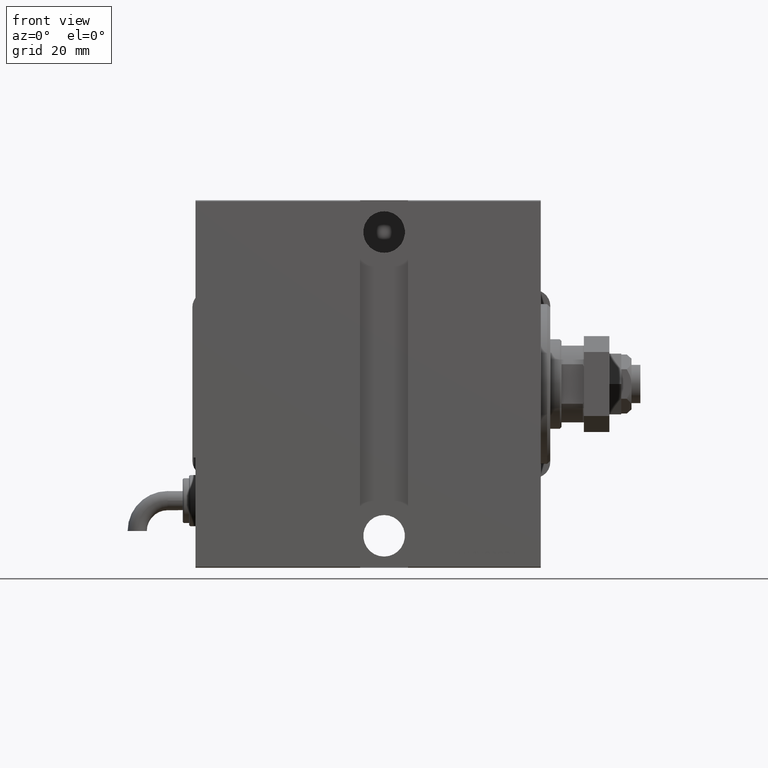
[diagram: clean part render]
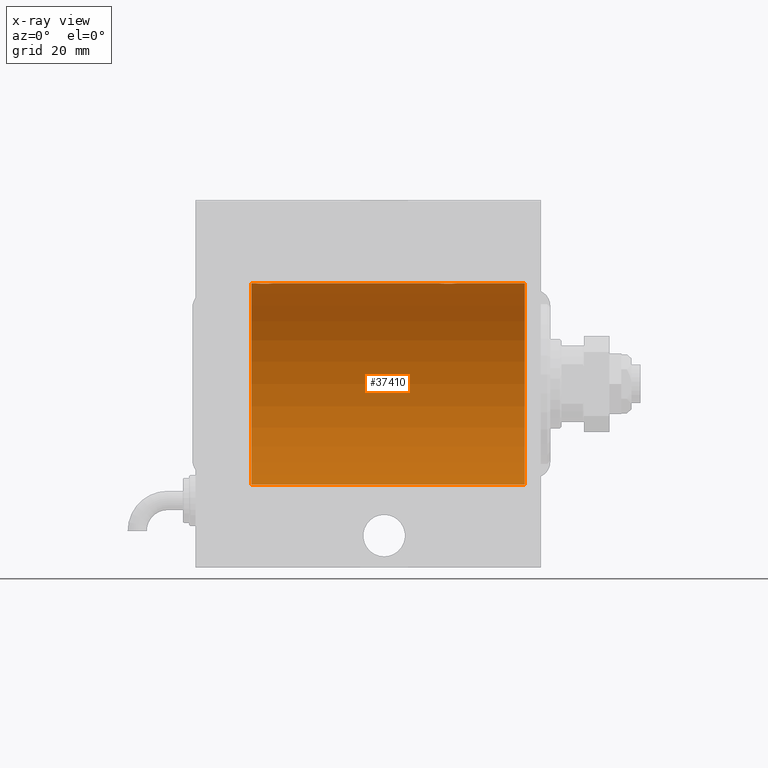
[diagram: x-ray — body ghosted, one internal face saturated and labeled with its STEP entity id]
A machine part, front view, then the same camera in x-ray: the body is ghosted and one INTERNAL B-rep face — a face not visible from any outside direction — is saturated and labeled: STEP entity #37410.
In plain terms, the highlighted cylindrical surface (partial cylindrical patch) has radius 31.5 mm, axis along (1, 0, -0).
Its self-contained STEP definition (entity closure, byte-faithful):
#1314 = CARTESIAN_POINT ( 'NONE',  ( 29.96515729810639783, -2.847307171789040581, 31.37114183851420890 ) ) ;
#1936 = CARTESIAN_POINT ( 'NONE',  ( 26.00000000000000355, -2.117263226567934635E-23, 31.50000000000000000 ) ) ;
#2154 = VERTEX_POINT ( 'NONE', #50291 ) ;
#3306 = DIRECTION ( 'NONE',  ( 0.000000000000000000, 0.000000000000000000, 1.000000000000000000 ) ) ;
#3326 = CARTESIAN_POINT ( 'NONE',  ( 87.82865414687509542, -2.696917666262918623, 31.38442820068732075 ) ) ;
#3618 = CARTESIAN_POINT ( 'NONE',  ( 83.49999999999998579, -2.116947682205846230E-23, 31.50000000000000000 ) ) ;
#4186 = CARTESIAN_POINT ( 'NONE',  ( 83.80285761163298730, -1.328004386210312138, 31.47251238182140298 ) ) ;
#4481 = CARTESIAN_POINT ( 'NONE',  ( 87.27469094434370334, -2.904836261170119283, 31.36579955910872997 ) ) ;
#5342 = DIRECTION ( 'NONE',  ( -1.000000000000000000, -0.000000000000000000, -0.000000000000000000 ) ) ;
#6345 = CARTESIAN_POINT ( 'NONE',  ( 90.50000000000000000, 0.000000000000000000, 31.50000000000000000 ) ) ;
#6359 = CARTESIAN_POINT ( 'NONE',  ( 31.92020662950041654, -0.7905881588836122242, 31.49214662150069088 ) ) ;
#6435 = CIRCLE ( 'NONE', #36773, 31.50000000000000000 ) ;
#6593 = DIRECTION ( 'NONE',  ( -1.000000000000000000, -0.000000000000000000, -0.000000000000000000 ) ) ;
#8067 = CARTESIAN_POINT ( 'NONE',  ( 86.29953541025902553, -2.999845816735311921, 31.35683219171744796 ) ) ;
#8176 = LINE ( 'NONE', #16504, #13904 ) ;
#8496 = CARTESIAN_POINT ( 'NONE',  ( 26.00000000000000355, -0.1958045626907478631, 31.50000000000000000 ) ) ;
#8659 = CARTESIAN_POINT ( 'NONE',  ( 89.10192140439156105, -1.506272792558331464, 31.46439306106695710 ) ) ;
#8777 = CARTESIAN_POINT ( 'NONE',  ( 27.16956308512997964, -2.384935707362441537, 31.40977595730572958 ) ) ;
#8886 = EDGE_CURVE ( 'NONE', #12677, #21678, #28695, .T. ) ;
#9106 = EDGE_CURVE ( 'NONE', #12677, #42104, #50756, .T. ) ;
#10348 = CARTESIAN_POINT ( 'NONE',  ( 90.50000000000000000, 0.000000000000000000, 0.000000000000000000 ) ) ;
#10427 = DIRECTION ( 'NONE',  ( -1.000000000000000000, -0.000000000000000000, -0.000000000000000000 ) ) ;
#12081 = B_SPLINE_CURVE_WITH_KNOTS ( 'NONE', 3,
 ( #3618, #12537, #53763, #36231, #58215, #4186, #13105, #44566, #13685, #31216, #45130, #49000, #48713, #39520, #26760, #49884, #8067, #54066, #21730, #4481, #43978, #3326, #54353, #57637, #17555, #35644, #35083, #8659, #22308, #44845, #26172, #53197 ),
 .UNSPECIFIED., .F., .F.,
 ( 4, 2, 2, 2, 2, 2, 2, 2, 2, 2, 2, 2, 2, 2, 2, 4 ),
 ( 0.009384682587134656959, 0.009971088165454059654, 0.01055749374377346235, 0.01114389932209286505, 0.01173030490041226774, 0.01231671047873167044, 0.01290311605705107487, 0.01348952163537047583, 0.01407592721368988026, 0.01466233279200928122, 0.01524873837032868565, 0.01583514394864808661, 0.01642154952696749104, 0.01700795510528689200, 0.01759436068360629296, 0.01876717184024508447 ),
 .UNSPECIFIED. ) ;
#12537 = CARTESIAN_POINT ( 'NONE',  ( 83.49999999999998579, -0.1958045626907475578, 31.50000000000000000 ) ) ;
#12677 = VERTEX_POINT ( 'NONE', #1936 ) ;
#13105 = CARTESIAN_POINT ( 'NONE',  ( 83.89582218725267637, -1.502389880413007806, 31.46458023642405166 ) ) ;
#13685 = CARTESIAN_POINT ( 'NONE',  ( 84.23904537543869253, -1.981494824113336550, 31.43792153503157394 ) ) ;
#13904 = VECTOR ( 'NONE', #40209, 1000.000000000000000 ) ;
#14125 = CARTESIAN_POINT ( 'NONE',  ( 89.50000000000000000, 3.986776180743416568E-16, 31.50000000000000000 ) ) ;
#14405 = CARTESIAN_POINT ( 'NONE',  ( 31.38246872266632082, -1.833765390051044220, 31.44700610425690712 ) ) ;
#14640 = ORIENTED_EDGE ( 'NONE', *, *, #42137, .F. ) ;
#14693 = ORIENTED_EDGE ( 'NONE', *, *, #45448, .T. ) ;
#14945 = EDGE_CURVE ( 'NONE', #51629, #31582, #34189, .T. ) ;
#15274 = CARTESIAN_POINT ( 'NONE',  ( 30.50098156296147422, -2.604888532024794312, 31.39229907792057972 ) ) ;
#16504 = CARTESIAN_POINT ( 'NONE',  ( 90.50000000000000000, 0.000000000000000000, 31.50000000000000000 ) ) ;
#17392 = CARTESIAN_POINT ( 'NONE',  ( 26.00000000000000355, -2.117263226567934635E-23, 31.50000000000000000 ) ) ;
#17555 = CARTESIAN_POINT ( 'NONE',  ( 88.48143462873044029, -2.261012035264788445, 31.41905495618427935 ) ) ;
#17984 = CARTESIAN_POINT ( 'NONE',  ( 28.22118087357679528, -2.903733559410688336, 31.36590199989304395 ) ) ;
#18128 = CARTESIAN_POINT ( 'NONE',  ( 90.50000000000000000, 3.857637417314162689E-15, -31.50000000000000000 ) ) ;
#20693 = ORIENTED_EDGE ( 'NONE', *, *, #21090, .F. ) ;
#21090 = EDGE_CURVE ( 'NONE', #2154, #51629, #43262, .T. ) ;
#21678 = VERTEX_POINT ( 'NONE', #21823 ) ;
#21711 = DIRECTION ( 'NONE',  ( -1.000000000000000000, 0.000000000000000000, 0.000000000000000000 ) ) ;
#21730 = CARTESIAN_POINT ( 'NONE',  ( 86.89114547339940486, -2.980809450819716044, 31.35867074198615256 ) ) ;
#21823 = CARTESIAN_POINT ( 'NONE',  ( 5.000000000000004441, 0.000000000000000000, 31.50000000000000000 ) ) ;
#22140 = CARTESIAN_POINT ( 'NONE',  ( 26.61498557723073333, -1.830470878313879668, 31.44719957596828763 ) ) ;
#22308 = CARTESIAN_POINT ( 'NONE',  ( 89.19529642359012200, -1.331741824817668673, 31.47235367475394341 ) ) ;
#23164 = LINE ( 'NONE', #18128, #47996 ) ;
#23305 = CARTESIAN_POINT ( 'NONE',  ( 29.77469094434372465, -2.904836261170110845, 31.36579955910872997 ) ) ;
#23995 = DIRECTION ( 'NONE',  ( 0.000000000000000000, 0.000000000000000000, 1.000000000000000000 ) ) ;
#24593 = CARTESIAN_POINT ( 'NONE',  ( 83.49999999999998579, -2.116947682205846230E-23, 31.50000000000000000 ) ) ;
#25262 = AXIS2_PLACEMENT_3D ( 'NONE', #10348, #46533, #23995 ) ;
#26172 = CARTESIAN_POINT ( 'NONE',  ( 89.50000000000001421, -0.3965830985361756822, 31.50000000000000711 ) ) ;
#26593 = CARTESIAN_POINT ( 'NONE',  ( 26.01898490608483527, -0.3904857149112059278, 31.49817436802766224 ) ) ;
#26760 = CARTESIAN_POINT ( 'NONE',  ( 85.72118087357677041, -2.903733559410701215, 31.36590199989303684 ) ) ;
#26880 = CARTESIAN_POINT ( 'NONE',  ( 27.49543714993000521, -2.602826974226399859, 31.39247100434484850 ) ) ;
#26928 = EDGE_CURVE ( 'NONE', #27869, #31582, #12081, .T. ) ;
#27168 = CARTESIAN_POINT ( 'NONE',  ( 29.19582294439440062, -3.000152387858491476, 31.35680286115500337 ) ) ;
#27869 = VERTEX_POINT ( 'NONE', #24593 ) ;
#28345 = CARTESIAN_POINT ( 'NONE',  ( 32.00000000000000000, -0.3965830985361757932, 31.50000000000000711 ) ) ;
#28414 = DIRECTION ( 'NONE',  ( -1.000000000000000000, -0.000000000000000000, -0.000000000000000000 ) ) ;
#28695 = LINE ( 'NONE', #55413, #56833 ) ;
#28913 = CARTESIAN_POINT ( 'NONE',  ( 31.60192140439154684, -1.506272792558327467, 31.46439306106696421 ) ) ;
#29687 = ORIENTED_EDGE ( 'NONE', *, *, #9106, .T. ) ;
#31216 = CARTESIAN_POINT ( 'NONE',  ( 84.51539640075333182, -2.258226318633794083, 31.41925597582825702 ) ) ;
#31343 = CARTESIAN_POINT ( 'NONE',  ( 27.01539640075336379, -2.258226318633789642, 31.41925597582827123 ) ) ;
#31582 = VERTEX_POINT ( 'NONE', #14125 ) ;
#31798 = ORIENTED_EDGE ( 'NONE', *, *, #14945, .F. ) ;
#32349 = ORIENTED_EDGE ( 'NONE', *, *, #54845, .T. ) ;
#32549 = CARTESIAN_POINT ( 'NONE',  ( 5.000000000000004441, 3.857637417314162689E-15, -31.50000000000000000 ) ) ;
#33197 = ORIENTED_EDGE ( 'NONE', *, *, #8886, .F. ) ;
#33266 = DIRECTION ( 'NONE',  ( 0.000000000000000000, 0.000000000000000000, 1.000000000000000000 ) ) ;
#33371 = CARTESIAN_POINT ( 'NONE',  ( 32.00000000000000000, -2.212280765433387153E-16, 31.50000000000000000 ) ) ;
#34189 = LINE ( 'NONE', #38321, #51405 ) ;
#35083 = CARTESIAN_POINT ( 'NONE',  ( 88.88246872266631726, -1.833765390051049549, 31.44700610425690002 ) ) ;
#35644 = CARTESIAN_POINT ( 'NONE',  ( 88.75824501903265684, -1.984587626072078281, 31.43772577203671048 ) ) ;
#35767 = CARTESIAN_POINT ( 'NONE',  ( 26.09580549261944071, -0.7775502215293879082, 31.49099686045559565 ) ) ;
#36066 = CARTESIAN_POINT ( 'NONE',  ( 28.03055544341478367, -2.845838211243338023, 31.37127560316188024 ) ) ;
#36231 = CARTESIAN_POINT ( 'NONE',  ( 83.59580549261940519, -0.7775502215293890185, 31.49099686045558144 ) ) ;
#36773 = AXIS2_PLACEMENT_3D ( 'NONE', #38618, #21711, #3306 ) ;
#37410 = ADVANCED_FACE ( 'NONE', ( #51382 ), #55249, .F. ) ;
#38321 = CARTESIAN_POINT ( 'NONE',  ( 90.50000000000000000, 0.000000000000000000, 31.50000000000000000 ) ) ;
#38618 = CARTESIAN_POINT ( 'NONE',  ( 5.000000000000004441, 0.000000000000000000, 0.000000000000000000 ) ) ;
#39520 = CARTESIAN_POINT ( 'NONE',  ( 85.53055544341474103, -2.845838211243347793, 31.37127560316186603 ) ) ;
#40209 = DIRECTION ( 'NONE',  ( -1.000000000000000000, -0.000000000000000000, -0.000000000000000000 ) ) ;
#40224 = CARTESIAN_POINT ( 'NONE',  ( 26.30285761163299441, -1.328004386210307919, 31.47251238182140298 ) ) ;
#40292 = ORIENTED_EDGE ( 'NONE', *, *, #26928, .T. ) ;
#40521 = CARTESIAN_POINT ( 'NONE',  ( 26.39582218725271190, -1.502389880413000922, 31.46458023642405166 ) ) ;
#41397 = CARTESIAN_POINT ( 'NONE',  ( 31.69529642359011135, -1.331741824817660236, 31.47235367475394341 ) ) ;
#41700 = CARTESIAN_POINT ( 'NONE',  ( 30.32865414687508832, -2.696917666262911961, 31.38442820068732075 ) ) ;
#42104 = VERTEX_POINT ( 'NONE', #42628 ) ;
#42137 = EDGE_CURVE ( 'NONE', #27869, #42104, #8176, .T. ) ;
#42163 = CARTESIAN_POINT ( 'NONE',  ( 90.50000000000000000, 0.000000000000000000, 0.000000000000000000 ) ) ;
#42628 = CARTESIAN_POINT ( 'NONE',  ( 32.00000000000000000, -2.212280765433387153E-16, 31.50000000000000000 ) ) ;
#43262 = CIRCLE ( 'NONE', #25262, 31.50000000000000000 ) ;
#43978 = CARTESIAN_POINT ( 'NONE',  ( 87.46515729810640494, -2.847307171789049018, 31.37114183851420179 ) ) ;
#44566 = CARTESIAN_POINT ( 'NONE',  ( 84.11498557723074043, -1.830470878313888772, 31.44719957596829474 ) ) ;
#44681 = CARTESIAN_POINT ( 'NONE',  ( 26.15339536257502218, -0.9669616078782009572, 31.48567319468626735 ) ) ;
#44845 = CARTESIAN_POINT ( 'NONE',  ( 89.42020662950044141, -0.7905881588836197738, 31.49214662150070509 ) ) ;
#45130 = CARTESIAN_POINT ( 'NONE',  ( 84.66956308512999385, -2.384935707362453527, 31.40977595730572958 ) ) ;
#45253 = CARTESIAN_POINT ( 'NONE',  ( 29.39114547339941907, -2.980809450819707163, 31.35867074198615967 ) ) ;
#45448 = EDGE_CURVE ( 'NONE', #55558, #21678, #6435, .T. ) ;
#46428 = CARTESIAN_POINT ( 'NONE',  ( 30.82704225370269668, -2.387531469909775605, 31.40957782495775419 ) ) ;
#46533 = DIRECTION ( 'NONE',  ( -1.000000000000000000, 0.000000000000000000, 0.000000000000000000 ) ) ;
#47996 = VECTOR ( 'NONE', #5342, 1000.000000000000000 ) ;
#48713 = CARTESIAN_POINT ( 'NONE',  ( 85.16760041900836598, -2.695056442718549050, 31.38458855656186941 ) ) ;
#49000 = CARTESIAN_POINT ( 'NONE',  ( 84.99543714992999810, -2.602826974226411849, 31.39247100434485560 ) ) ;
#49714 = CARTESIAN_POINT ( 'NONE',  ( 28.79953541025905395, -2.999845816735302151, 31.35683219171744796 ) ) ;
#49884 = CARTESIAN_POINT ( 'NONE',  ( 86.10465888999905815, -2.980257240990072276, 31.35872356503798031 ) ) ;
#50291 = CARTESIAN_POINT ( 'NONE',  ( 90.50000000000000000, 3.857637417314162689E-15, -31.50000000000000000 ) ) ;
#50756 = B_SPLINE_CURVE_WITH_KNOTS ( 'NONE', 3,
 ( #17392, #8496, #26593, #35767, #44681, #40224, #40521, #22140, #53894, #31343, #8777, #26880, #58629, #36066, #17984, #54189, #49714, #27168, #45253, #23305, #1314, #41700, #15274, #46428, #51490, #55641, #14405, #28913, #41397, #6359, #28345, #33371 ),
 .UNSPECIFIED., .F., .F.,
 ( 4, 2, 2, 2, 2, 2, 2, 2, 2, 2, 2, 2, 2, 2, 2, 4 ),
 ( 0.009384682587134636142, 0.009971088165454035368, 0.01055749374377343633, 0.01114389932209283729, 0.01173030490041223652, 0.01231671047873163748, 0.01290311605705103844, 0.01348952163537044113, 0.01407592721368984209, 0.01466233279200924305, 0.01524873837032864402, 0.01583514394864804498, 0.01642154952696744594, 0.01700795510528684690, 0.01759436068360624786, 0.01876717184024504284 ),
 .UNSPECIFIED. ) ;
#51382 = FACE_OUTER_BOUND ( 'NONE', #51999, .T. ) ;
#51405 = VECTOR ( 'NONE', #6593, 1000.000000000000000 ) ;
#51490 = CARTESIAN_POINT ( 'NONE',  ( 30.98143462873041543, -2.261012035264784004, 31.41905495618427935 ) ) ;
#51629 = VERTEX_POINT ( 'NONE', #6345 ) ;
#51999 = EDGE_LOOP ( 'NONE', ( #20693, #32349, #14693, #33197, #29687, #14640, #40292, #31798 ) ) ;
#53197 = CARTESIAN_POINT ( 'NONE',  ( 89.50000000000000000, 3.986776180743416568E-16, 31.50000000000000000 ) ) ;
#53763 = CARTESIAN_POINT ( 'NONE',  ( 83.51898490608482462, -0.3904857149112057613, 31.49817436802766935 ) ) ;
#53894 = CARTESIAN_POINT ( 'NONE',  ( 26.73904537543871029, -1.981494824113332998, 31.43792153503156683 ) ) ;
#54066 = CARTESIAN_POINT ( 'NONE',  ( 86.69582294439439352, -3.000152387858501690, 31.35680286115500337 ) ) ;
#54189 = CARTESIAN_POINT ( 'NONE',  ( 28.60465888999905815, -2.980257240990060286, 31.35872356503798031 ) ) ;
#54353 = CARTESIAN_POINT ( 'NONE',  ( 88.00098156296147067, -2.604888532024803194, 31.39229907792057972 ) ) ;
#54845 = EDGE_CURVE ( 'NONE', #2154, #55558, #23164, .T. ) ;
#55249 = CYLINDRICAL_SURFACE ( 'NONE', #55509, 31.50000000000000000 ) ;
#55413 = CARTESIAN_POINT ( 'NONE',  ( 90.50000000000000000, 0.000000000000000000, 31.50000000000000000 ) ) ;
#55509 = AXIS2_PLACEMENT_3D ( 'NONE', #42163, #10427, #33266 ) ;
#55558 = VERTEX_POINT ( 'NONE', #32549 ) ;
#55641 = CARTESIAN_POINT ( 'NONE',  ( 31.25824501903267461, -1.984587626072075617, 31.43772577203673180 ) ) ;
#56833 = VECTOR ( 'NONE', #28414, 1000.000000000000000 ) ;
#57637 = CARTESIAN_POINT ( 'NONE',  ( 88.32704225370268603, -2.387531469909783599, 31.40957782495775419 ) ) ;
#58215 = CARTESIAN_POINT ( 'NONE',  ( 83.65339536257499731, -0.9669616078782038437, 31.48567319468627446 ) ) ;
#58629 = CARTESIAN_POINT ( 'NONE',  ( 27.66760041900836242, -2.695056442718537060, 31.38458855656185875 ) ) ;